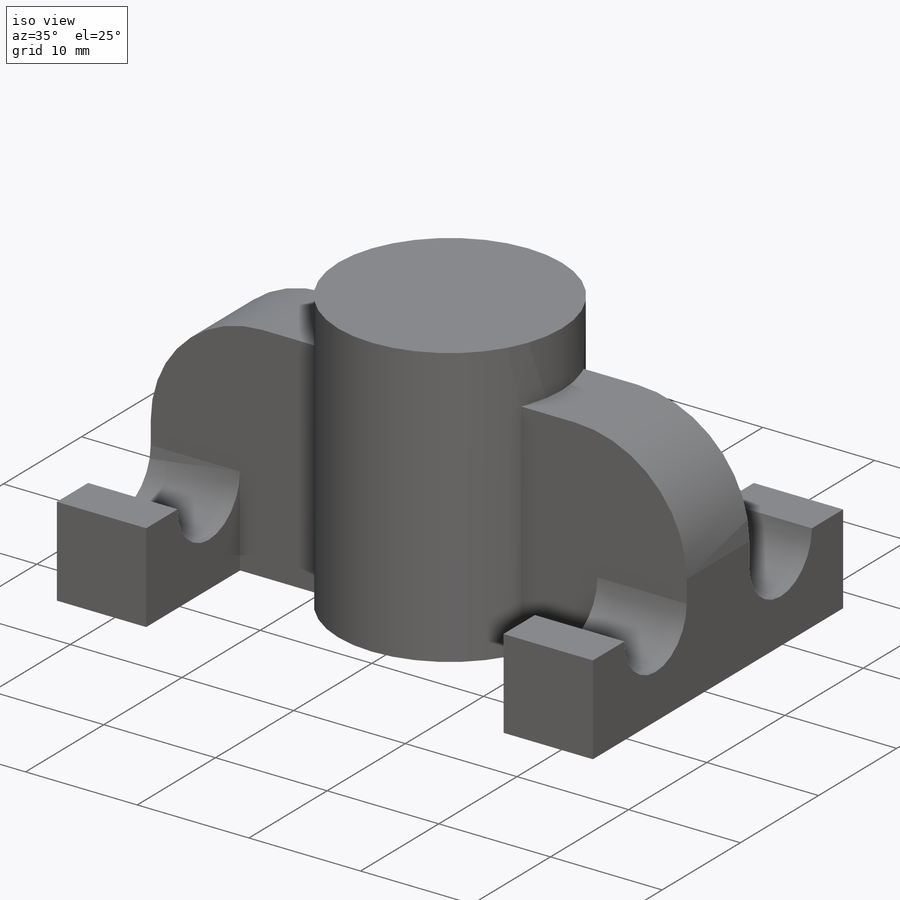
[diagram: iso view]
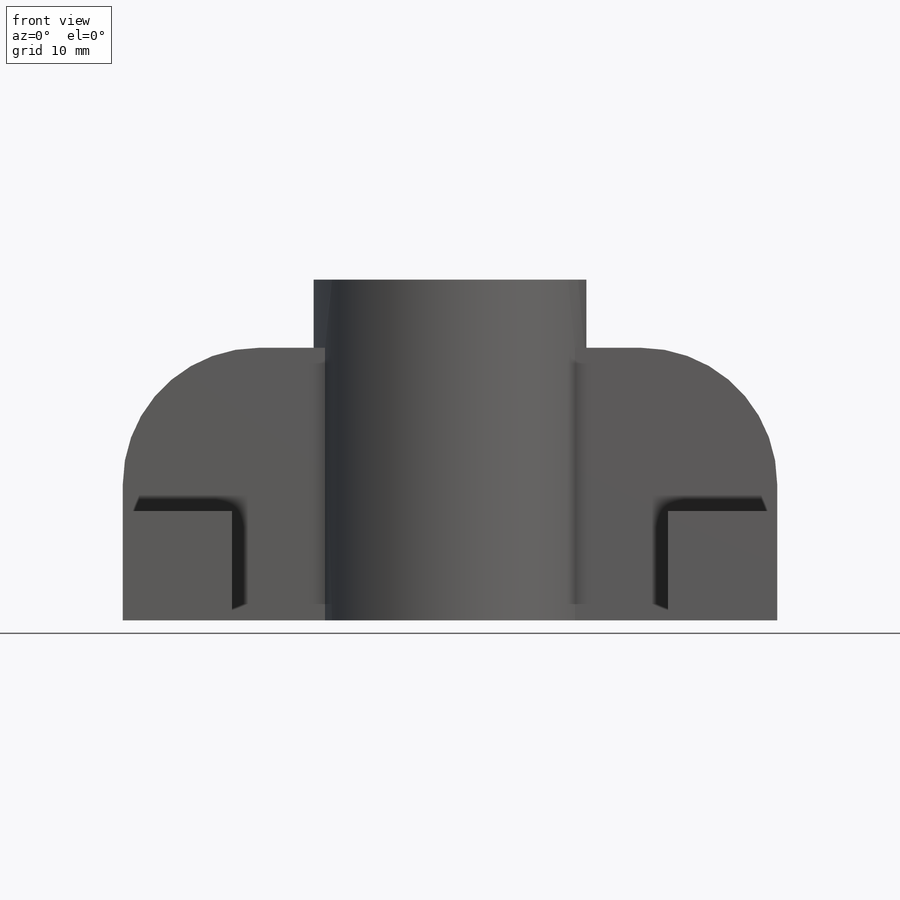
[diagram: front view]
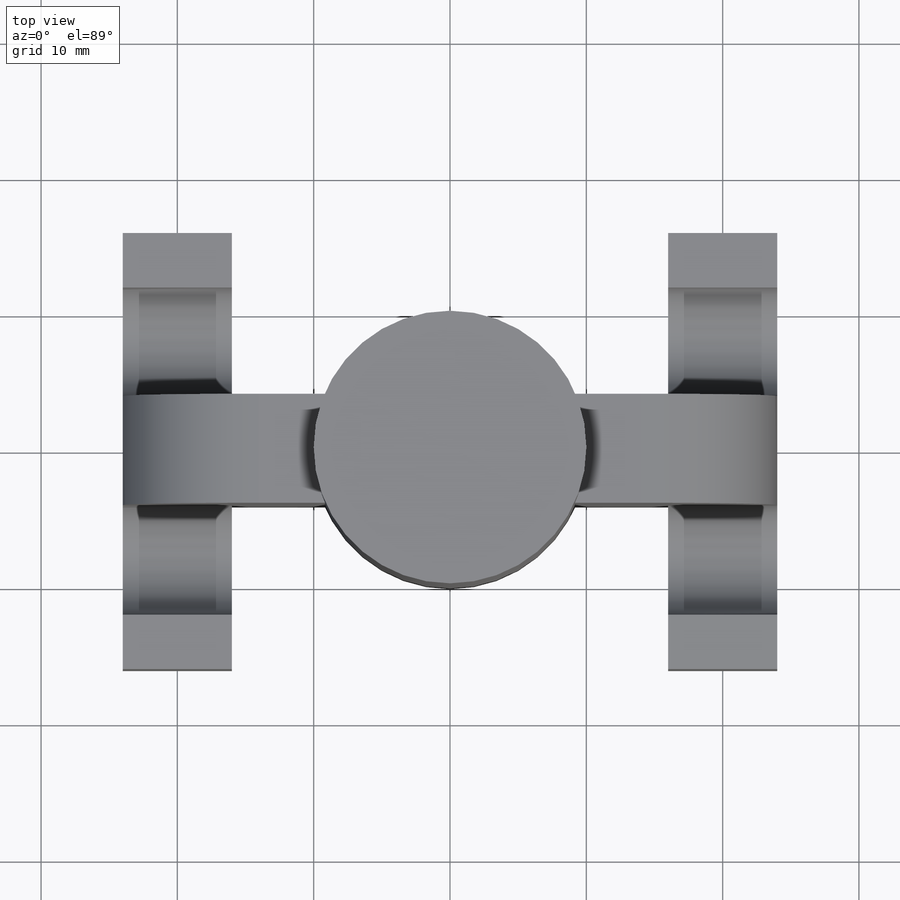
[diagram: top view]
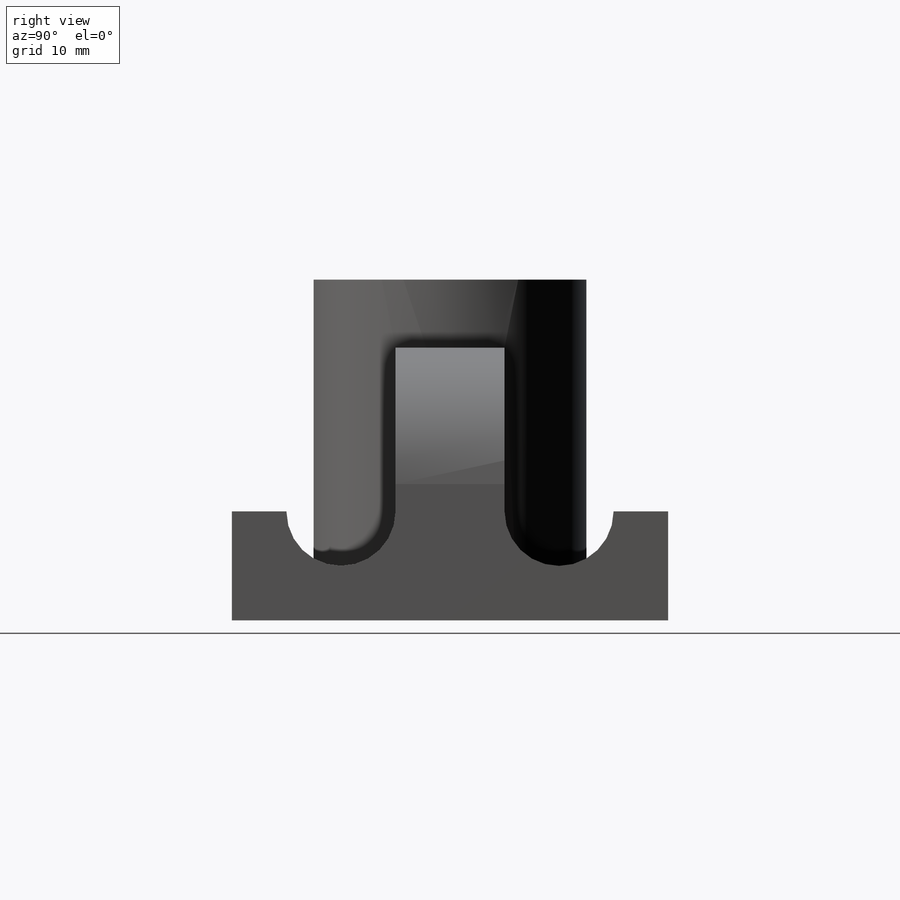
[diagram: right view]
SOLIDWORKS PART (.sldprt)
format: sldprt  version: not decoded by parser v0  size: 377,856 bytes
history: native  units: mm
features: sketch x5, extrude x3, material x1, hole x1, mirror x1, fillet x1 (+11 scaffold rows collapsed)
feature tree (23):
  scaffold x11  (default folders/planes/origin — collapsed)
  material  "Material <not specified>"
  sketch  "Sketch1"  dims[D1=20.0mm]
  extrude  "Pen Cap"  Depth=25mm
  sketch  "Sketch2"  dims[D1=8.0mm D2=48.0mm]
  extrude  "Hook Structure"  Depth=20mm
  hole  "Pen Centering Hole"  Diameter=11mm Depth=15mm
  sketch  "Sketch4"
  sketch  "Sketch3"  dims[c1.D1=~97.659253deg c1.D2=~82.982399deg c1.Diameter=11.0mm c2.D2=100.0mm c2.D3=~82.982399deg c2.D4=90.0deg c3.D3=~97.716715deg c3.Depth=15.0mm c3.Drill Angle=90.0deg]
  sketch  "Sketch6"  dims[D2=4.0mm D1=8.0mm D3=12.0mm]
  extrude  "Hooks"  Depth=8mm
  mirror  "Hook Mirror"
  fillet  "Corner Dec"  Radius=10mm
decode coverage: 9 of 11 modeling features carry decoded parameters
note: ~ marks probable driven/reference dimensions
note: suppression state not decoded; provenance and decode notes live in map.json
